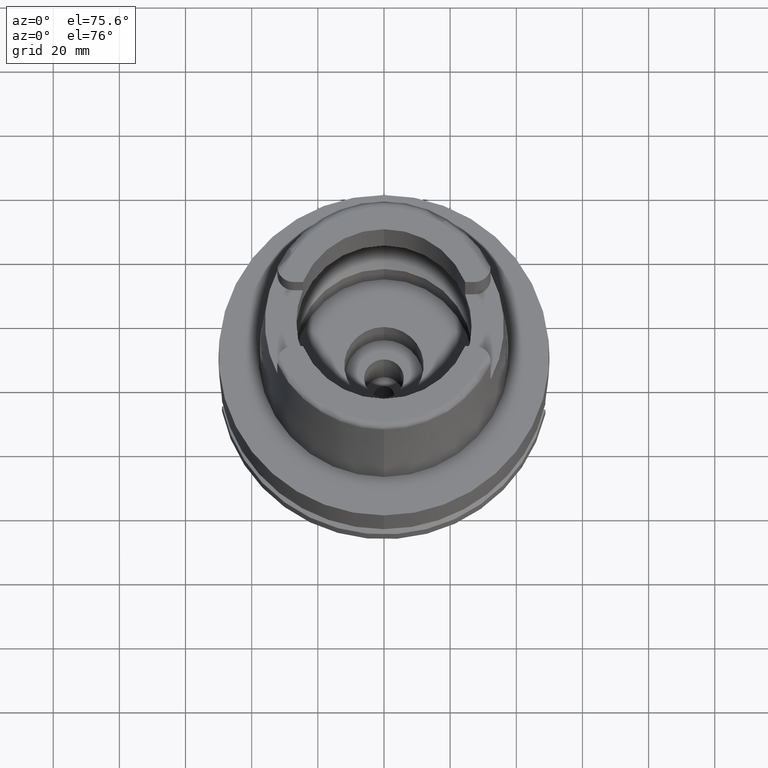
[diagram: clean part render]
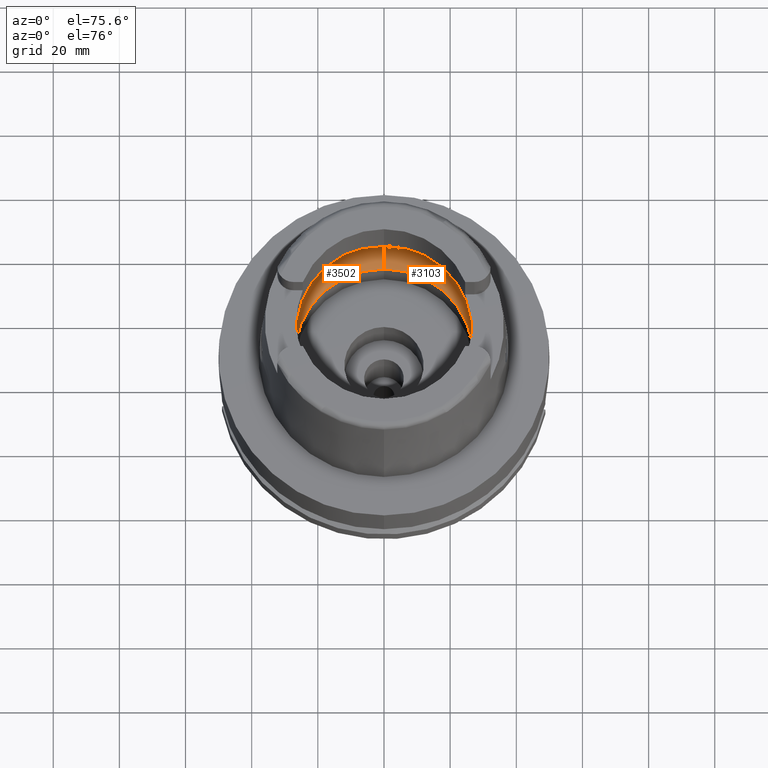
[diagram: same view with one multi-face feature highlighted, each face labeled with its STEP entity id]
A machine part, auxiliary view. The highlighted faces form ONE feature: a constant-radius fillet chain: 2 tangent blend faces with common blend radius 12 mm. The faces share edges in the B-rep.
Their STEP definitions:
[1] entity #3103 (Torus):
#223 = CIRCLE ( 'NONE', #1117, 31.50000000000000000 ) ;
#380 = DIRECTION ( 'NONE',  ( 0.0000000000000000000, -0.6166666666667049990, -0.7872243785746061429 ) ) ;
#428 = DIRECTION ( 'NONE',  ( 0.0000000000000000000, 1.000000000000000000, 0.0000000000000000000 ) ) ;
#476 = CARTESIAN_POINT ( 'NONE',  ( 0.0000000000000000000, 0.0000000000000000000, 9.496624327025999790 ) ) ;
#478 = CARTESIAN_POINT ( 'NONE',  ( 0.0000000000000000000, -26.89999999999999858, 0.04993178413037000635 ) ) ;
#618 = EDGE_CURVE ( 'NONE', #5038, #888, #2566, .T. ) ;
#665 = ORIENTED_EDGE ( 'NONE', *, *, #1745, .F. ) ;
#779 = CARTESIAN_POINT ( 'NONE',  ( 31.48971910754000447, 0.0000000000000000000, 9.000000000000000000 ) ) ;
#833 = DIRECTION ( 'NONE',  ( 0.0000000000000000000, 0.0000000000000000000, 1.000000000000000000 ) ) ;
#888 = VERTEX_POINT ( 'NONE', #4536 ) ;
#1117 = AXIS2_PLACEMENT_3D ( 'NONE', #2790, #4098, #1965 ) ;
#1132 = CARTESIAN_POINT ( 'NONE',  ( 0.0000000000000000000, -31.50000000000000000, 9.496624327025999790 ) ) ;
#1160 = CARTESIAN_POINT ( 'NONE',  ( 0.0000000000000000000, -19.50000000000000000, 9.496624327025999790 ) ) ;
#1166 = DIRECTION ( 'NONE',  ( 0.0000000000000000000, -1.000000000000000000, 0.0000000000000000000 ) ) ;
#1304 = EDGE_CURVE ( 'NONE', #2315, #5038, #4167, .T. ) ;
#1478 = VERTEX_POINT ( 'NONE', #2983 ) ;
#1529 = CARTESIAN_POINT ( 'NONE',  ( 31.40918884336000616, 2.390158196043999705, 9.496624327025999790 ) ) ;
#1544 = ORIENTED_EDGE ( 'NONE', *, *, #1304, .F. ) ;
#1745 = EDGE_CURVE ( 'NONE', #3047, #2315, #223, .T. ) ;
#1760 = TOROIDAL_SURFACE ( 'NONE', #2823, 19.50000000000000000, 12.00000000000000000 ) ;
#1924 = CIRCLE ( 'NONE', #4528, 11.99999999999999822 ) ;
#1965 = DIRECTION ( 'NONE',  ( 0.0000000000000000000, 1.000000000000000000, 0.0000000000000000000 ) ) ;
#2055 = CARTESIAN_POINT ( 'NONE',  ( 0.0000000000000000000, 31.50000000000000000, 9.496624327025999790 ) ) ;
#2103 = DIRECTION ( 'NONE',  ( 0.0000000000000000000, 0.0000000000000000000, 1.000000000000000000 ) ) ;
#2216 = AXIS2_PLACEMENT_3D ( 'NONE', #476, #2630, #3511 ) ;
#2315 = VERTEX_POINT ( 'NONE', #1529 ) ;
#2369 = AXIS2_PLACEMENT_3D ( 'NONE', #2996, #2103, #1166 ) ;
#2384 = DIRECTION ( 'NONE',  ( 0.0000000000000000000, 0.6166666666667049990, -0.7872243785746061429 ) ) ;
#2466 = CIRCLE ( 'NONE', #2369, 26.89999999999999858 ) ;
#2509 = DIRECTION ( 'NONE',  ( -1.000000000000000000, 0.0000000000000000000, 0.0000000000000000000 ) ) ;
#2566 = B_SPLINE_CURVE_WITH_KNOTS ( 'NONE', 3,
 ( #3106, #4799, #4829, #2627 ),
 .UNSPECIFIED., .F., .F.,
 ( 4, 4 ),
 ( 0.0000000000000000000, 1.000000000000000000 ),
 .UNSPECIFIED. ) ;
#2627 = CARTESIAN_POINT ( 'NONE',  ( 31.40918884336000616, -2.390158196043999705, 9.496624327025999790 ) ) ;
#2630 = DIRECTION ( 'NONE',  ( 0.0000000000000000000, 0.0000000000000000000, -1.000000000000000000 ) ) ;
#2651 = CARTESIAN_POINT ( 'NONE',  ( 31.48971910754000447, 0.0000000000000000000, 9.000000000000000000 ) ) ;
#2790 = CARTESIAN_POINT ( 'NONE',  ( 0.0000000000000000000, 0.0000000000000000000, 9.496624327025999790 ) ) ;
#2823 = AXIS2_PLACEMENT_3D ( 'NONE', #5546, #833, #428 ) ;
#2983 = CARTESIAN_POINT ( 'NONE',  ( 0.0000000000000000000, 26.89999999999999858, 0.04993178413037000635 ) ) ;
#2996 = CARTESIAN_POINT ( 'NONE',  ( 0.0000000000000000000, 0.0000000000000000000, 0.04993178413037000635 ) ) ;
#3025 = CARTESIAN_POINT ( 'NONE',  ( 31.48971910753999026, 0.8697454017787721314, 9.000000000000001776 ) ) ;
#3047 = VERTEX_POINT ( 'NONE', #2055 ) ;
#3103 = ADVANCED_FACE ( 'NONE', ( #5086 ), #1760, .F. ) ;
#3106 = CARTESIAN_POINT ( 'NONE',  ( 31.48971910754000447, 0.0000000000000000000, 9.000000000000000000 ) ) ;
#3203 = VERTEX_POINT ( 'NONE', #478 ) ;
#3388 = EDGE_CURVE ( 'NONE', #1478, #3047, #1924, .T. ) ;
#3441 = CARTESIAN_POINT ( 'NONE',  ( 31.40918884336000616, 2.390158196043999705, 9.496624327025999790 ) ) ;
#3511 = DIRECTION ( 'NONE',  ( 0.9971171061384295209, -0.07587803796965221503, 0.0000000000000000000 ) ) ;
#3523 = CARTESIAN_POINT ( 'NONE',  ( 31.46287568614665986, 1.684656700008886121, 9.190219625026216477 ) ) ;
#3641 = CIRCLE ( 'NONE', #2216, 31.49999999999998934 ) ;
#3666 = ORIENTED_EDGE ( 'NONE', *, *, #3837, .F. ) ;
#3672 = EDGE_LOOP ( 'NONE', ( #1544, #665, #4446, #3666, #5474, #3871, #5317 ) ) ;
#3837 = EDGE_CURVE ( 'NONE', #3203, #1478, #2466, .T. ) ;
#3871 = ORIENTED_EDGE ( 'NONE', *, *, #5218, .F. ) ;
#4098 = DIRECTION ( 'NONE',  ( 0.0000000000000000000, 0.0000000000000000000, -1.000000000000000000 ) ) ;
#4130 = DIRECTION ( 'NONE',  ( 1.000000000000000000, 0.0000000000000000000, 0.0000000000000000000 ) ) ;
#4167 = B_SPLINE_CURVE_WITH_KNOTS ( 'NONE', 3,
 ( #3441, #3523, #3025, #2651 ),
 .UNSPECIFIED., .F., .F.,
 ( 4, 4 ),
 ( 0.0000000000000000000, 1.000000000000000000 ),
 .UNSPECIFIED. ) ;
#4377 = AXIS2_PLACEMENT_3D ( 'NONE', #1160, #2509, #380 ) ;
#4418 = VERTEX_POINT ( 'NONE', #1132 ) ;
#4446 = ORIENTED_EDGE ( 'NONE', *, *, #3388, .F. ) ;
#4522 = CARTESIAN_POINT ( 'NONE',  ( 0.0000000000000000000, 19.50000000000000000, 9.496624327025999790 ) ) ;
#4528 = AXIS2_PLACEMENT_3D ( 'NONE', #4522, #4130, #2384 ) ;
#4536 = CARTESIAN_POINT ( 'NONE',  ( 31.40918884336000616, -2.390158196043999705, 9.496624327025999790 ) ) ;
#4740 = CIRCLE ( 'NONE', #4377, 11.99999999999999822 ) ;
#4799 = CARTESIAN_POINT ( 'NONE',  ( 31.48971910753999026, -0.8697454017312684638, 8.999999999999998224 ) ) ;
#4829 = CARTESIAN_POINT ( 'NONE',  ( 31.46287568614665986, -1.684656699965325632, 9.190219625007294724 ) ) ;
#5038 = VERTEX_POINT ( 'NONE', #779 ) ;
#5086 = FACE_OUTER_BOUND ( 'NONE', #3672, .T. ) ;
#5218 = EDGE_CURVE ( 'NONE', #888, #4418, #3641, .T. ) ;
#5317 = ORIENTED_EDGE ( 'NONE', *, *, #618, .F. ) ;
#5382 = EDGE_CURVE ( 'NONE', #3203, #4418, #4740, .T. ) ;
#5474 = ORIENTED_EDGE ( 'NONE', *, *, #5382, .T. ) ;
#5546 = CARTESIAN_POINT ( 'NONE',  ( 0.0000000000000000000, 0.0000000000000000000, 9.496624327025999790 ) ) ;
[2] entity #3502 (Torus):
#42 = CARTESIAN_POINT ( 'NONE',  ( -31.40918884336000616, 2.390158196043999705, 9.496624327025999790 ) ) ;
#380 = DIRECTION ( 'NONE',  ( 0.0000000000000000000, -0.6166666666667049990, -0.7872243785746061429 ) ) ;
#404 = EDGE_CURVE ( 'NONE', #4418, #1961, #639, .T. ) ;
#409 = AXIS2_PLACEMENT_3D ( 'NONE', #2058, #2498, #3766 ) ;
#431 = CARTESIAN_POINT ( 'NONE',  ( -31.48971910754000447, 0.8697454016785111097, 9.000000000000001776 ) ) ;
#478 = CARTESIAN_POINT ( 'NONE',  ( 0.0000000000000000000, -26.89999999999999858, 0.04993178413037000635 ) ) ;
#581 = ORIENTED_EDGE ( 'NONE', *, *, #404, .F. ) ;
#639 = CIRCLE ( 'NONE', #4066, 31.50000000000000000 ) ;
#771 = ORIENTED_EDGE ( 'NONE', *, *, #5496, .F. ) ;
#777 = DIRECTION ( 'NONE',  ( 0.0000000000000000000, 0.0000000000000000000, -1.000000000000000000 ) ) ;
#951 = CARTESIAN_POINT ( 'NONE',  ( -31.40918884336000616, -2.390158196043999705, 9.496624327025999790 ) ) ;
#1132 = CARTESIAN_POINT ( 'NONE',  ( 0.0000000000000000000, -31.50000000000000000, 9.496624327025999790 ) ) ;
#1160 = CARTESIAN_POINT ( 'NONE',  ( 0.0000000000000000000, -19.50000000000000000, 9.496624327025999790 ) ) ;
#1279 = CARTESIAN_POINT ( 'NONE',  ( 0.0000000000000000000, 0.0000000000000000000, 0.04993178413037000635 ) ) ;
#1346 = DIRECTION ( 'NONE',  ( 0.0000000000000000000, 1.000000000000000000, 0.0000000000000000000 ) ) ;
#1478 = VERTEX_POINT ( 'NONE', #2983 ) ;
#1587 = CIRCLE ( 'NONE', #4199, 26.89999999999999858 ) ;
#1924 = CIRCLE ( 'NONE', #4528, 11.99999999999999822 ) ;
#1950 = CARTESIAN_POINT ( 'NONE',  ( -31.46287568614665986, -1.684656700029165899, 9.190219625035021878 ) ) ;
#1961 = VERTEX_POINT ( 'NONE', #951 ) ;
#2055 = CARTESIAN_POINT ( 'NONE',  ( 0.0000000000000000000, 31.50000000000000000, 9.496624327025999790 ) ) ;
#2058 = CARTESIAN_POINT ( 'NONE',  ( 0.0000000000000000000, 0.0000000000000000000, 9.496624327025999790 ) ) ;
#2082 = DIRECTION ( 'NONE',  ( -0.9971171061384295209, 0.07587803796965221503, 0.0000000000000000000 ) ) ;
#2332 = ORIENTED_EDGE ( 'NONE', *, *, #3388, .T. ) ;
#2361 = CARTESIAN_POINT ( 'NONE',  ( -31.40918884336000616, -2.390158196043999705, 9.496624327025999790 ) ) ;
#2384 = DIRECTION ( 'NONE',  ( 0.0000000000000000000, 0.6166666666667049990, -0.7872243785746061429 ) ) ;
#2388 = VERTEX_POINT ( 'NONE', #2874 ) ;
#2498 = DIRECTION ( 'NONE',  ( 0.0000000000000000000, 0.0000000000000000000, 1.000000000000000000 ) ) ;
#2502 = ORIENTED_EDGE ( 'NONE', *, *, #3577, .F. ) ;
#2509 = DIRECTION ( 'NONE',  ( -1.000000000000000000, 0.0000000000000000000, 0.0000000000000000000 ) ) ;
#2554 = FACE_OUTER_BOUND ( 'NONE', #3077, .T. ) ;
#2576 = DIRECTION ( 'NONE',  ( 0.0000000000000000000, 0.0000000000000000000, 1.000000000000000000 ) ) ;
#2874 = CARTESIAN_POINT ( 'NONE',  ( -31.48971910754000447, 0.0000000000000000000, 9.000000000000000000 ) ) ;
#2876 = DIRECTION ( 'NONE',  ( 0.0000000000000000000, -1.000000000000000000, 0.0000000000000000000 ) ) ;
#2983 = CARTESIAN_POINT ( 'NONE',  ( 0.0000000000000000000, 26.89999999999999858, 0.04993178413037000635 ) ) ;
#3007 = CARTESIAN_POINT ( 'NONE',  ( -31.46287568614665986, 1.684656699916923683, 9.190219624986275093 ) ) ;
#3047 = VERTEX_POINT ( 'NONE', #2055 ) ;
#3077 = EDGE_LOOP ( 'NONE', ( #581, #5077, #771, #2332, #2502, #4959, #5152 ) ) ;
#3145 = B_SPLINE_CURVE_WITH_KNOTS ( 'NONE', 3,
 ( #2361, #1950, #4079, #5380 ),
 .UNSPECIFIED., .F., .F.,
 ( 4, 4 ),
 ( 0.0000000000000000000, 1.000000000000000000 ),
 .UNSPECIFIED. ) ;
#3154 = B_SPLINE_CURVE_WITH_KNOTS ( 'NONE', 3,
 ( #4220, #431, #3007, #5516 ),
 .UNSPECIFIED., .F., .F.,
 ( 4, 4 ),
 ( 0.0000000000000000000, 1.000000000000000000 ),
 .UNSPECIFIED. ) ;
#3171 = AXIS2_PLACEMENT_3D ( 'NONE', #3405, #4731, #2082 ) ;
#3203 = VERTEX_POINT ( 'NONE', #478 ) ;
#3388 = EDGE_CURVE ( 'NONE', #1478, #3047, #1924, .T. ) ;
#3405 = CARTESIAN_POINT ( 'NONE',  ( 0.0000000000000000000, 0.0000000000000000000, 9.496624327025999790 ) ) ;
#3502 = ADVANCED_FACE ( 'NONE', ( #2554 ), #4177, .F. ) ;
#3516 = EDGE_CURVE ( 'NONE', #2388, #5399, #3154, .T. ) ;
#3577 = EDGE_CURVE ( 'NONE', #5399, #3047, #5432, .T. ) ;
#3766 = DIRECTION ( 'NONE',  ( 0.0000000000000000000, 1.000000000000000000, 0.0000000000000000000 ) ) ;
#4066 = AXIS2_PLACEMENT_3D ( 'NONE', #4631, #777, #2876 ) ;
#4079 = CARTESIAN_POINT ( 'NONE',  ( -31.48971910754000447, -0.8697454018008697885, 8.999999999999998224 ) ) ;
#4130 = DIRECTION ( 'NONE',  ( 1.000000000000000000, 0.0000000000000000000, 0.0000000000000000000 ) ) ;
#4177 = TOROIDAL_SURFACE ( 'NONE', #409, 19.50000000000000000, 12.00000000000000000 ) ;
#4199 = AXIS2_PLACEMENT_3D ( 'NONE', #1279, #2576, #1346 ) ;
#4220 = CARTESIAN_POINT ( 'NONE',  ( -31.48971910754000447, 0.0000000000000000000, 9.000000000000000000 ) ) ;
#4377 = AXIS2_PLACEMENT_3D ( 'NONE', #1160, #2509, #380 ) ;
#4418 = VERTEX_POINT ( 'NONE', #1132 ) ;
#4522 = CARTESIAN_POINT ( 'NONE',  ( 0.0000000000000000000, 19.50000000000000000, 9.496624327025999790 ) ) ;
#4528 = AXIS2_PLACEMENT_3D ( 'NONE', #4522, #4130, #2384 ) ;
#4631 = CARTESIAN_POINT ( 'NONE',  ( 0.0000000000000000000, 0.0000000000000000000, 9.496624327025999790 ) ) ;
#4731 = DIRECTION ( 'NONE',  ( 0.0000000000000000000, 0.0000000000000000000, -1.000000000000000000 ) ) ;
#4740 = CIRCLE ( 'NONE', #4377, 11.99999999999999822 ) ;
#4768 = EDGE_CURVE ( 'NONE', #1961, #2388, #3145, .T. ) ;
#4959 = ORIENTED_EDGE ( 'NONE', *, *, #3516, .F. ) ;
#5077 = ORIENTED_EDGE ( 'NONE', *, *, #5382, .F. ) ;
#5152 = ORIENTED_EDGE ( 'NONE', *, *, #4768, .F. ) ;
#5380 = CARTESIAN_POINT ( 'NONE',  ( -31.48971910754000447, 0.0000000000000000000, 9.000000000000000000 ) ) ;
#5382 = EDGE_CURVE ( 'NONE', #3203, #4418, #4740, .T. ) ;
#5399 = VERTEX_POINT ( 'NONE', #42 ) ;
#5432 = CIRCLE ( 'NONE', #3171, 31.49999999999998934 ) ;
#5496 = EDGE_CURVE ( 'NONE', #1478, #3203, #1587, .T. ) ;
#5516 = CARTESIAN_POINT ( 'NONE',  ( -31.40918884336000616, 2.390158196043999705, 9.496624327025999790 ) ) ;